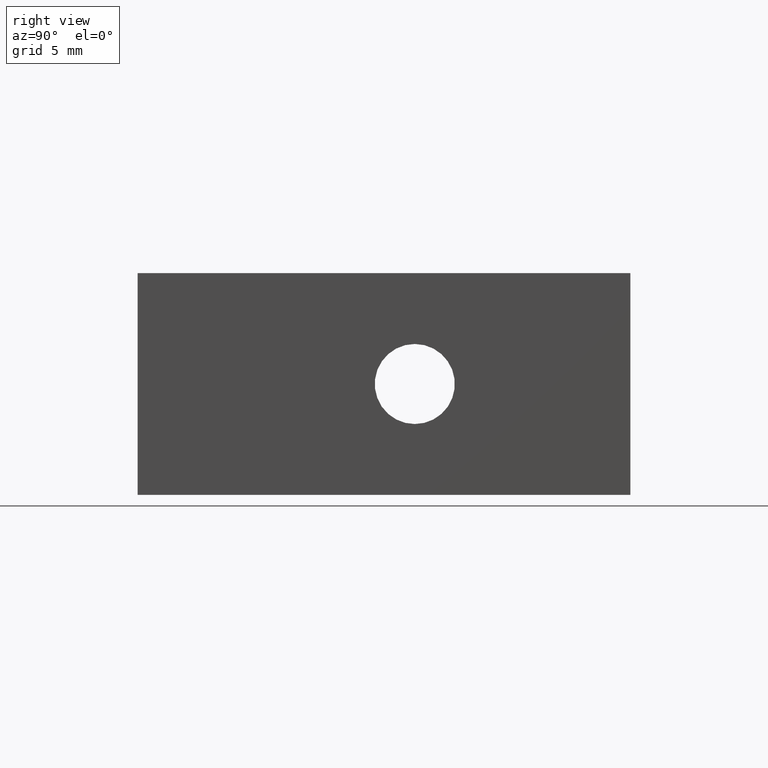
[diagram: clean part render]
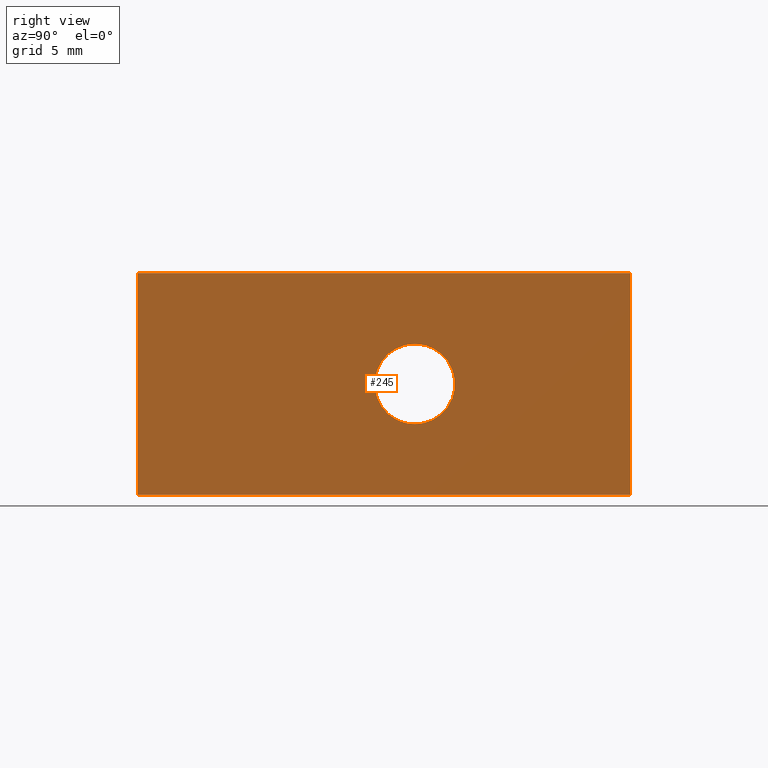
[diagram: same view with one face highlighted and labeled with its STEP entity id]
A machine part, right view. The second image highlights one B-rep face of the part: STEP entity #245.
In plain terms, the highlighted planar face has unit normal (1, 0, 0).
Its self-contained STEP definition (entity closure, byte-faithful):
#28=LINE('',#373,#54);
#36=LINE('',#389,#62);
#38=LINE('',#392,#64);
#39=LINE('',#393,#65);
#54=VECTOR('',#306,39.9999999998399);
#62=VECTOR('',#320,39.9999999998399);
#64=VECTOR('',#324,18.);
#65=VECTOR('',#325,18.);
#75=PLANE('',#265);
#83=FACE_BOUND('',#114,.T.);
#95=FACE_OUTER_BOUND('',#113,.T.);
#113=EDGE_LOOP('',(#211,#212,#213,#214));
#114=EDGE_LOOP('',(#215));
#120=CIRCLE('',#253,3.25);
#124=VERTEX_POINT('',#337);
#136=VERTEX_POINT('',#370);
#137=VERTEX_POINT('',#372);
#141=VERTEX_POINT('',#386);
#142=VERTEX_POINT('',#388);
#144=EDGE_CURVE('',#124,#124,#120,.T.);
#160=EDGE_CURVE('',#136,#137,#28,.T.);
#168=EDGE_CURVE('',#142,#141,#36,.T.);
#170=EDGE_CURVE('',#142,#136,#38,.T.);
#171=EDGE_CURVE('',#141,#137,#39,.T.);
#211=ORIENTED_EDGE('',*,*,#160,.F.);
#212=ORIENTED_EDGE('',*,*,#170,.F.);
#213=ORIENTED_EDGE('',*,*,#168,.T.);
#214=ORIENTED_EDGE('',*,*,#171,.T.);
#215=ORIENTED_EDGE('',*,*,#144,.T.);
#245=ADVANCED_FACE('',(#95,#83),#75,.T.);
#253=AXIS2_PLACEMENT_3D('',#338,#275,#276);
#265=AXIS2_PLACEMENT_3D('',#391,#322,#323);
#275=DIRECTION('center_axis',(-1.,0.,0.));
#276=DIRECTION('ref_axis',(0.,0.,1.));
#306=DIRECTION('',(0.,1.,0.));
#320=DIRECTION('',(0.,1.,0.));
#322=DIRECTION('center_axis',(1.,0.,0.));
#323=DIRECTION('ref_axis',(0.,0.,-1.));
#324=DIRECTION('',(0.,0.,1.));
#325=DIRECTION('',(0.,0.,1.));
#337=CARTESIAN_POINT('',(0.,3.9801020972289E-16,-3.25));
#338=CARTESIAN_POINT('Origin',(0.,0.,0.));
#370=CARTESIAN_POINT('',(0.,-22.49999999991,9.00000000003593));
#372=CARTESIAN_POINT('',(0.,17.49999999993,9.00000000003593));
#373=CARTESIAN_POINT('',(0.,-22.49999999991,9.00000000003593));
#386=CARTESIAN_POINT('',(0.,17.49999999993,-8.99999999996408));
#388=CARTESIAN_POINT('',(0.,-22.49999999991,-8.99999999996408));
#389=CARTESIAN_POINT('',(0.,-22.49999999991,-8.99999999996408));
#391=CARTESIAN_POINT('Origin',(0.,-22.5000433069972,-9.00004330705133));
#392=CARTESIAN_POINT('',(0.,-22.49999999991,-8.99999999996408));
#393=CARTESIAN_POINT('',(0.,17.49999999993,-8.99999999996408));